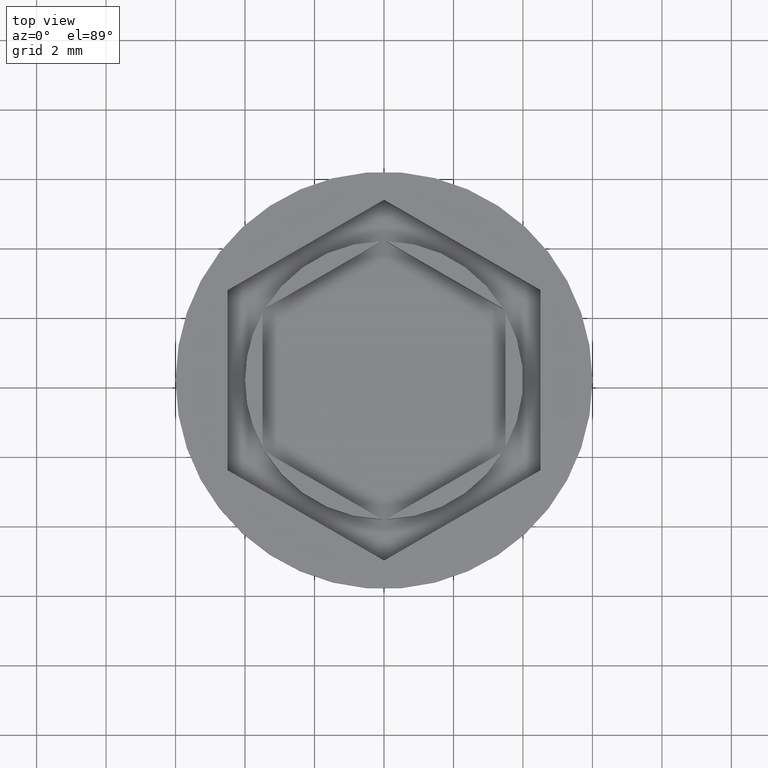
[diagram: clean part render]
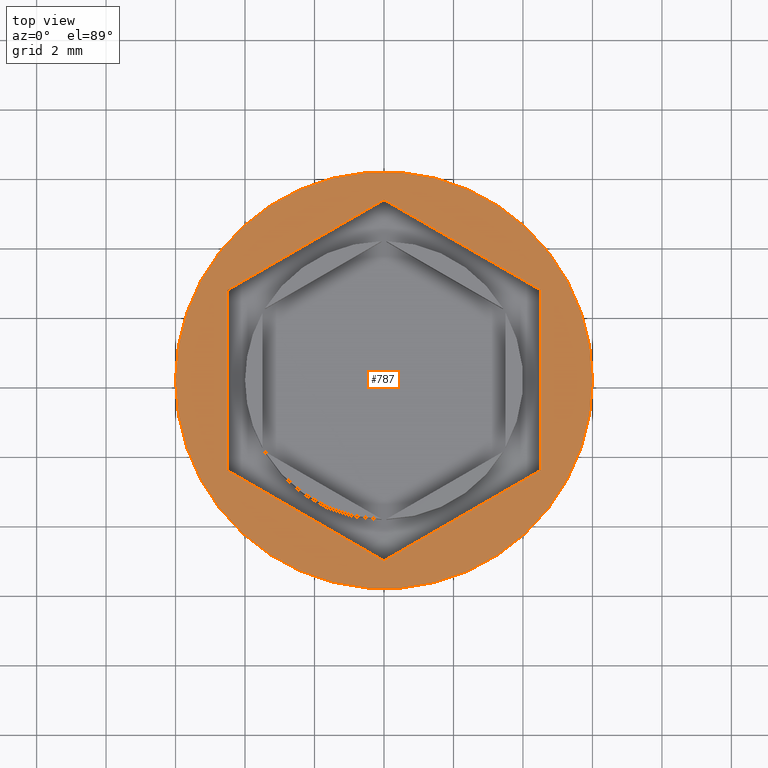
[diagram: same view with one face highlighted and labeled with its STEP entity id]
A machine part, top view. The second image highlights one B-rep face of the part: STEP entity #787.
In plain terms, the highlighted planar face has unit normal (0, -0, 1).
Its self-contained STEP definition (entity closure, byte-faithful):
#15 = VECTOR ( 'NONE', #718, 1000.000000000000227 ) ;
#24 = EDGE_CURVE ( 'NONE', #1757, #241, #281, .T. ) ;
#66 = DIRECTION ( 'NONE',  ( 0.8660254037844385966, 0.5000000000000001110, 0.000000000000000000 ) ) ;
#96 = LINE ( 'NONE', #1028, #1601 ) ;
#102 = CARTESIAN_POINT ( 'NONE',  ( -4.500000000000000888, -2.598076211353316456, 0.000000000000000000 ) ) ;
#174 = CIRCLE ( 'NONE', #459, 6.000000000000000000 ) ;
#182 = CARTESIAN_POINT ( 'NONE',  ( 6.000000000000000000, 0.000000000000000000, 0.000000000000000000 ) ) ;
#214 = CARTESIAN_POINT ( 'NONE',  ( 0.000000000000000000, 0.000000000000000000, 0.000000000000000000 ) ) ;
#225 = EDGE_LOOP ( 'NONE', ( #1117, #699, #1982, #632, #469, #1365 ) ) ;
#241 = VERTEX_POINT ( 'NONE', #1709 ) ;
#249 = DIRECTION ( 'NONE',  ( -0.8660254037844387076, 0.4999999999999998335, 0.000000000000000000 ) ) ;
#270 = EDGE_CURVE ( 'NONE', #1423, #1896, #1450, .T. ) ;
#281 = LINE ( 'NONE', #102, #15 ) ;
#336 = VERTEX_POINT ( 'NONE', #1303 ) ;
#355 = EDGE_CURVE ( 'NONE', #241, #336, #1753, .T. ) ;
#459 = AXIS2_PLACEMENT_3D ( 'NONE', #214, #1456, #1950 ) ;
#469 = ORIENTED_EDGE ( 'NONE', *, *, #1188, .F. ) ;
#510 = EDGE_LOOP ( 'NONE', ( #1580, #658 ) ) ;
#518 = CARTESIAN_POINT ( 'NONE',  ( 0.000000000000000000, 5.196152422706632912, 0.000000000000000000 ) ) ;
#542 = DIRECTION ( 'NONE',  ( 1.000000000000000000, 0.000000000000000000, 0.000000000000000000 ) ) ;
#622 = CARTESIAN_POINT ( 'NONE',  ( 4.500000000000000888, -2.598076211353316012, 0.000000000000000000 ) ) ;
#632 = ORIENTED_EDGE ( 'NONE', *, *, #24, .F. ) ;
#658 = ORIENTED_EDGE ( 'NONE', *, *, #1924, .T. ) ;
#699 = ORIENTED_EDGE ( 'NONE', *, *, #1284, .F. ) ;
#718 = DIRECTION ( 'NONE',  ( 0.8660254037844385966, -0.5000000000000000000, 0.000000000000000000 ) ) ;
#746 = AXIS2_PLACEMENT_3D ( 'NONE', #1344, #1629, #542 ) ;
#781 = DIRECTION ( 'NONE',  ( 0.000000000000000000, 1.000000000000000000, 0.000000000000000000 ) ) ;
#787 = ADVANCED_FACE ( 'NONE', ( #1329, #1969 ), #854, .T. ) ;
#825 = CARTESIAN_POINT ( 'NONE',  ( -3.394223061414856671E-17, -5.196152422706632912, 0.000000000000000000 ) ) ;
#835 = CARTESIAN_POINT ( 'NONE',  ( 0.000000000000000000, 5.196152422706632912, 0.000000000000000000 ) ) ;
#854 = PLANE ( 'NONE',  #746 ) ;
#872 = VECTOR ( 'NONE', #66, 1000.000000000000000 ) ;
#901 = VERTEX_POINT ( 'NONE', #182 ) ;
#902 = CARTESIAN_POINT ( 'NONE',  ( -4.500000000000000888, 2.598076211353315568, 0.000000000000000000 ) ) ;
#923 = EDGE_CURVE ( 'NONE', #901, #1889, #1952, .T. ) ;
#925 = CARTESIAN_POINT ( 'NONE',  ( -4.500000000000000888, -2.598076211353316456, 0.000000000000000000 ) ) ;
#1028 = CARTESIAN_POINT ( 'NONE',  ( 4.500000000000000888, 2.598076211353317344, 0.000000000000000000 ) ) ;
#1097 = DIRECTION ( 'NONE',  ( 1.000000000000000000, 0.000000000000000000, 0.000000000000000000 ) ) ;
#1117 = ORIENTED_EDGE ( 'NONE', *, *, #1960, .F. ) ;
#1138 = DIRECTION ( 'NONE',  ( -0.8660254037844384856, -0.5000000000000001110, 0.000000000000000000 ) ) ;
#1159 = CARTESIAN_POINT ( 'NONE',  ( 4.500000000000000888, 2.598076211353317344, 0.000000000000000000 ) ) ;
#1188 = EDGE_CURVE ( 'NONE', #1896, #1757, #1452, .T. ) ;
#1234 = VECTOR ( 'NONE', #1674, 1000.000000000000000 ) ;
#1284 = EDGE_CURVE ( 'NONE', #336, #1458, #1534, .T. ) ;
#1303 = CARTESIAN_POINT ( 'NONE',  ( 4.500000000000000888, -2.598076211353316012, 0.000000000000000000 ) ) ;
#1329 = FACE_BOUND ( 'NONE', #225, .T. ) ;
#1344 = CARTESIAN_POINT ( 'NONE',  ( 0.000000000000000000, 0.000000000000000000, 0.000000000000000000 ) ) ;
#1365 = ORIENTED_EDGE ( 'NONE', *, *, #270, .F. ) ;
#1423 = VERTEX_POINT ( 'NONE', #518 ) ;
#1450 = LINE ( 'NONE', #835, #1820 ) ;
#1452 = LINE ( 'NONE', #902, #1234 ) ;
#1456 = DIRECTION ( 'NONE',  ( -0.000000000000000000, -0.000000000000000000, 1.000000000000000000 ) ) ;
#1458 = VERTEX_POINT ( 'NONE', #1159 ) ;
#1529 = CARTESIAN_POINT ( 'NONE',  ( 0.000000000000000000, 0.000000000000000000, 0.000000000000000000 ) ) ;
#1534 = LINE ( 'NONE', #622, #1888 ) ;
#1580 = ORIENTED_EDGE ( 'NONE', *, *, #923, .T. ) ;
#1581 = CARTESIAN_POINT ( 'NONE',  ( -4.500000000000000888, 2.598076211353315568, 0.000000000000000000 ) ) ;
#1601 = VECTOR ( 'NONE', #249, 1000.000000000000114 ) ;
#1629 = DIRECTION ( 'NONE',  ( 0.000000000000000000, -0.000000000000000000, 1.000000000000000000 ) ) ;
#1674 = DIRECTION ( 'NONE',  ( 0.000000000000000000, -1.000000000000000000, 0.000000000000000000 ) ) ;
#1690 = AXIS2_PLACEMENT_3D ( 'NONE', #1529, #1897, #1097 ) ;
#1709 = CARTESIAN_POINT ( 'NONE',  ( -3.394223061414856671E-17, -5.196152422706632912, 0.000000000000000000 ) ) ;
#1753 = LINE ( 'NONE', #825, #872 ) ;
#1757 = VERTEX_POINT ( 'NONE', #925 ) ;
#1820 = VECTOR ( 'NONE', #1138, 1000.000000000000227 ) ;
#1888 = VECTOR ( 'NONE', #781, 1000.000000000000000 ) ;
#1889 = VERTEX_POINT ( 'NONE', #1891 ) ;
#1891 = CARTESIAN_POINT ( 'NONE',  ( -6.000000000000000000, 7.347880794884119736E-16, 0.000000000000000000 ) ) ;
#1896 = VERTEX_POINT ( 'NONE', #1581 ) ;
#1897 = DIRECTION ( 'NONE',  ( -0.000000000000000000, -0.000000000000000000, 1.000000000000000000 ) ) ;
#1924 = EDGE_CURVE ( 'NONE', #1889, #901, #174, .T. ) ;
#1950 = DIRECTION ( 'NONE',  ( 1.000000000000000000, 0.000000000000000000, 0.000000000000000000 ) ) ;
#1952 = CIRCLE ( 'NONE', #1690, 6.000000000000000000 ) ;
#1960 = EDGE_CURVE ( 'NONE', #1458, #1423, #96, .T. ) ;
#1969 = FACE_OUTER_BOUND ( 'NONE', #510, .T. ) ;
#1982 = ORIENTED_EDGE ( 'NONE', *, *, #355, .F. ) ;